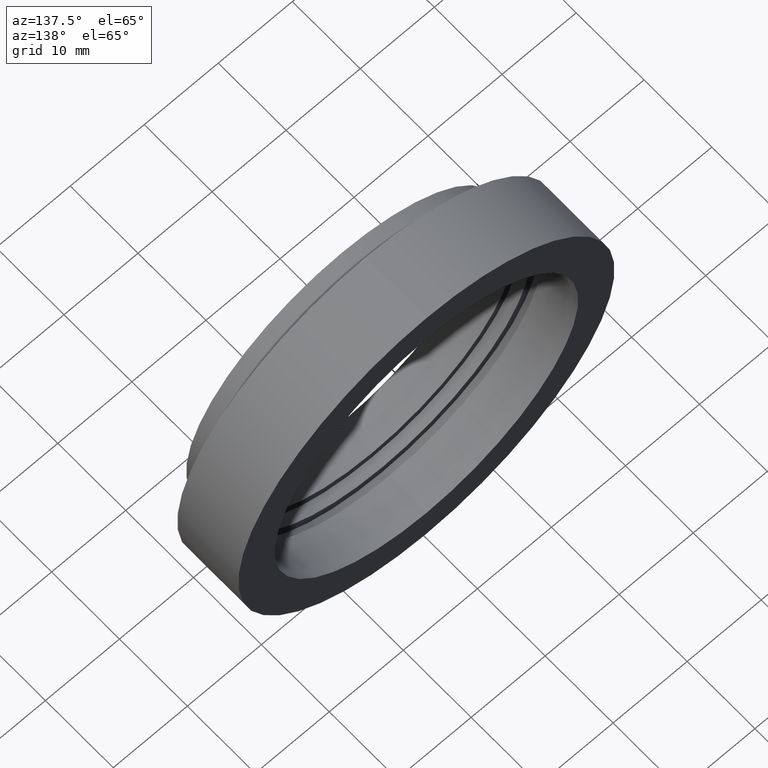
[diagram: clean part render]
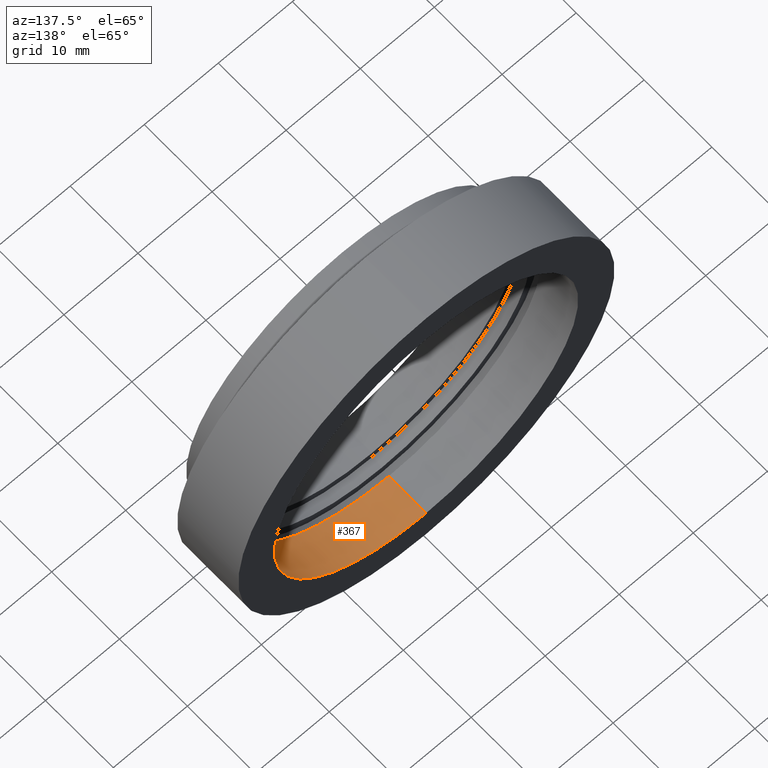
[diagram: same view with one face highlighted and labeled with its STEP entity id]
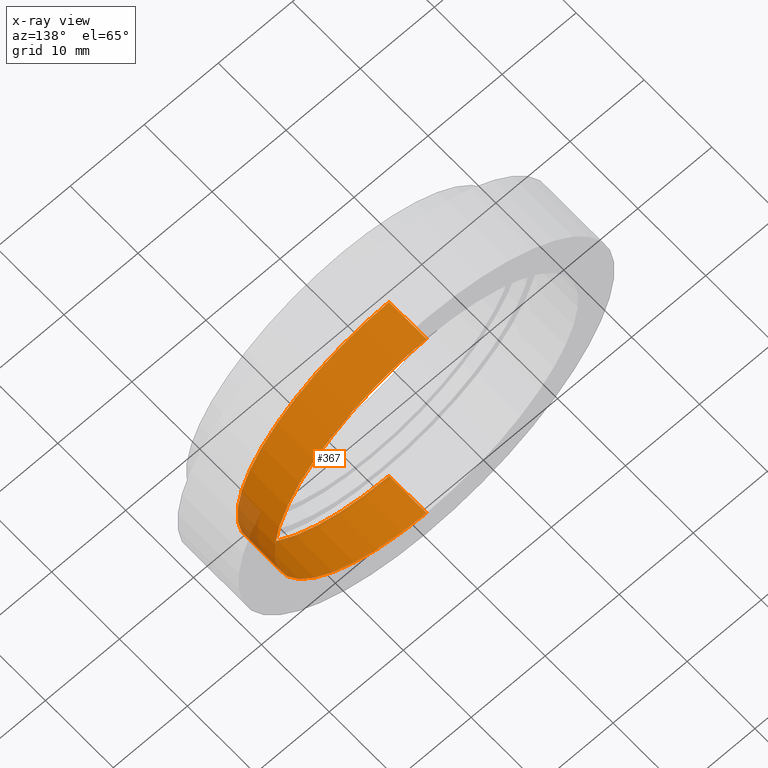
[diagram: x-ray of the same camera — body ghosted, the highlighted face saturated]
A machine part, auxiliary view. The second image highlights one B-rep face of the part: STEP entity #367.
The next image is the same camera in x-ray: the body ghosted, the highlighted face saturated — about 4% of this face is hidden behind the body in this view.
In plain terms, the highlighted cylindrical surface (partial cylindrical patch) has radius 20.5 mm, axis along (-0, -1, -0).
Its self-contained STEP definition (entity closure, byte-faithful):
#34 = DIRECTION ( 'NONE',  ( -0.0000000000000000000, -1.000000000000000000, -0.0000000000000000000 ) ) ;
#36 = VERTEX_POINT ( 'NONE', #709 ) ;
#42 = DIRECTION ( 'NONE',  ( 0.0000000000000000000, 0.0000000000000000000, -1.000000000000000000 ) ) ;
#47 = CARTESIAN_POINT ( 'NONE',  ( 2.510525938252074500E-015, 7.000000000000000000, 20.50000000000000400 ) ) ;
#71 = EDGE_CURVE ( 'NONE', #627, #325, #185, .T. ) ;
#97 = DIRECTION ( 'NONE',  ( -0.0000000000000000000, -1.000000000000000000, -0.0000000000000000000 ) ) ;
#104 = CARTESIAN_POINT ( 'NONE',  ( 2.510525938252074500E-015, 12.50000000000000000, 20.50000000000000400 ) ) ;
#109 = ORIENTED_EDGE ( 'NONE', *, *, #258, .T. ) ;
#122 = LINE ( 'NONE', #497, #432 ) ;
#126 = EDGE_CURVE ( 'NONE', #36, #310, #616, .T. ) ;
#148 = ORIENTED_EDGE ( 'NONE', *, *, #71, .F. ) ;
#177 = CARTESIAN_POINT ( 'NONE',  ( 2.510525938252074500E-015, 0.0000000000000000000, 20.50000000000000400 ) ) ;
#185 = CIRCLE ( 'NONE', #628, 20.50000000000000400 ) ;
#238 = CARTESIAN_POINT ( 'NONE',  ( 0.0000000000000000000, 12.50000000000000000, -20.50000000000000400 ) ) ;
#258 = EDGE_CURVE ( 'NONE', #627, #36, #122, .T. ) ;
#268 = DIRECTION ( 'NONE',  ( 0.0000000000000000000, 0.0000000000000000000, -1.000000000000000000 ) ) ;
#284 = CARTESIAN_POINT ( 'NONE',  ( 0.0000000000000000000, 0.0000000000000000000, 0.0000000000000000000 ) ) ;
#307 = DIRECTION ( 'NONE',  ( -0.0000000000000000000, -1.000000000000000000, -0.0000000000000000000 ) ) ;
#310 = VERTEX_POINT ( 'NONE', #47 ) ;
#325 = VERTEX_POINT ( 'NONE', #104 ) ;
#367 = ADVANCED_FACE ( 'NONE', ( #715 ), #711, .F. ) ;
#371 = CARTESIAN_POINT ( 'NONE',  ( 0.0000000000000000000, 12.50000000000000000, 0.0000000000000000000 ) ) ;
#377 = CARTESIAN_POINT ( 'NONE',  ( 0.0000000000000000000, 7.000000000000000000, 0.0000000000000000000 ) ) ;
#401 = DIRECTION ( 'NONE',  ( 0.0000000000000000000, 0.0000000000000000000, -1.000000000000000000 ) ) ;
#432 = VECTOR ( 'NONE', #556, 1000.000000000000000 ) ;
#454 = VECTOR ( 'NONE', #307, 1000.000000000000000 ) ;
#473 = LINE ( 'NONE', #177, #454 ) ;
#484 = EDGE_LOOP ( 'NONE', ( #684, #148, #109, #508 ) ) ;
#494 = DIRECTION ( 'NONE',  ( -0.0000000000000000000, -1.000000000000000000, -0.0000000000000000000 ) ) ;
#497 = CARTESIAN_POINT ( 'NONE',  ( 0.0000000000000000000, 0.0000000000000000000, -20.50000000000000400 ) ) ;
#508 = ORIENTED_EDGE ( 'NONE', *, *, #126, .T. ) ;
#556 = DIRECTION ( 'NONE',  ( -0.0000000000000000000, -1.000000000000000000, -0.0000000000000000000 ) ) ;
#583 = EDGE_CURVE ( 'NONE', #325, #310, #473, .T. ) ;
#616 = CIRCLE ( 'NONE', #689, 20.50000000000000400 ) ;
#627 = VERTEX_POINT ( 'NONE', #238 ) ;
#628 = AXIS2_PLACEMENT_3D ( 'NONE', #371, #34, #268 ) ;
#630 = AXIS2_PLACEMENT_3D ( 'NONE', #284, #494, #401 ) ;
#684 = ORIENTED_EDGE ( 'NONE', *, *, #583, .F. ) ;
#689 = AXIS2_PLACEMENT_3D ( 'NONE', #377, #97, #42 ) ;
#709 = CARTESIAN_POINT ( 'NONE',  ( 0.0000000000000000000, 7.000000000000000000, -20.50000000000000400 ) ) ;
#711 = CYLINDRICAL_SURFACE ( 'NONE', #630, 20.50000000000000400 ) ;
#715 = FACE_OUTER_BOUND ( 'NONE', #484, .T. ) ;